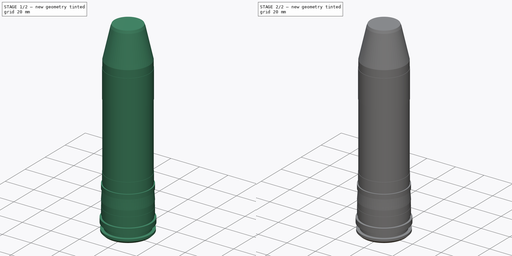
[diagram: build sequence overview — one tinted view per stage of 2, left to right]
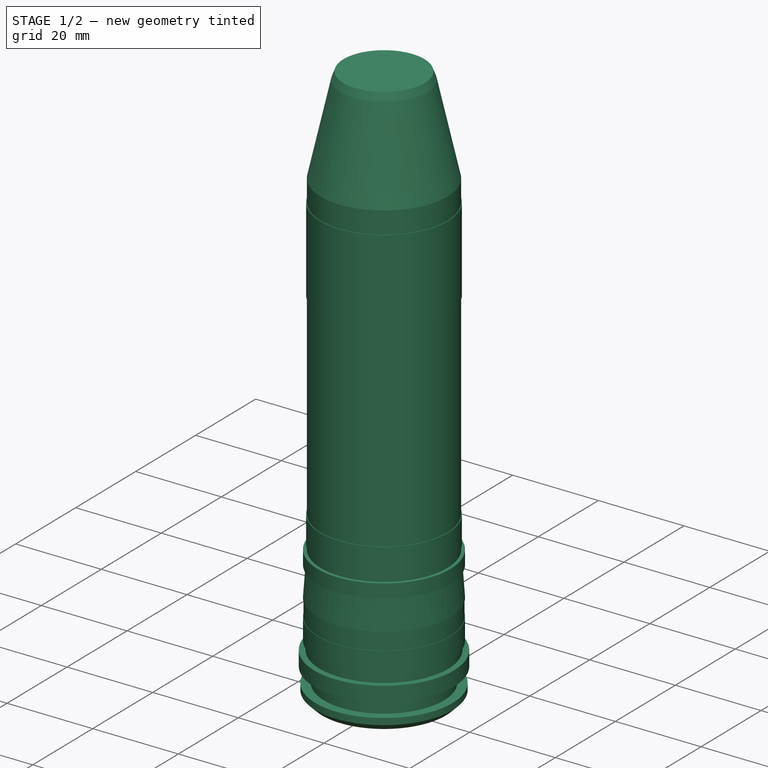
[diagram: stage 1 of 2 — iso view after this stage's code; geometry added in this stage tinted green]
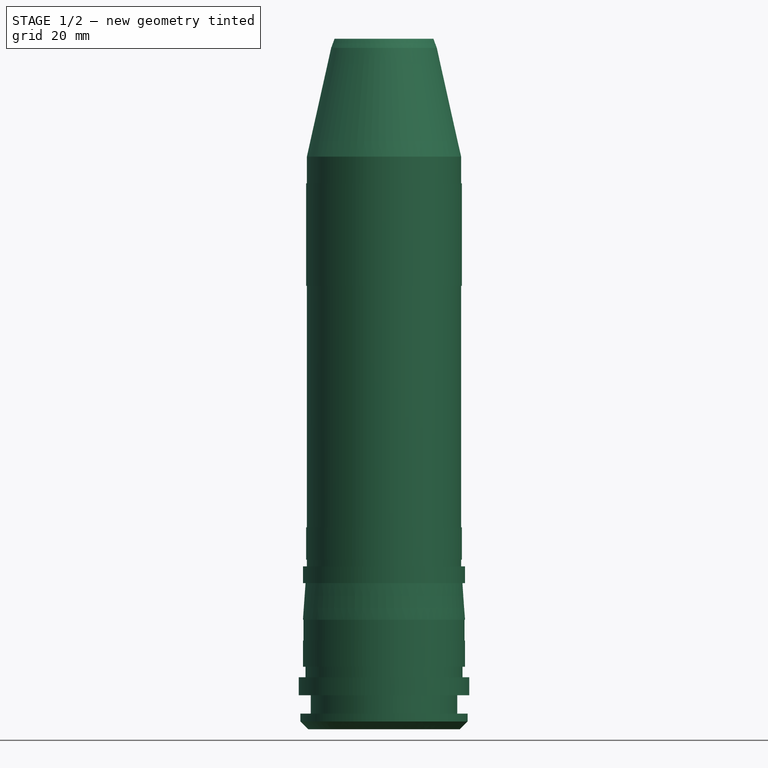
[diagram: stage 1 of 2 — front view after this stage's code; geometry added in this stage tinted green]
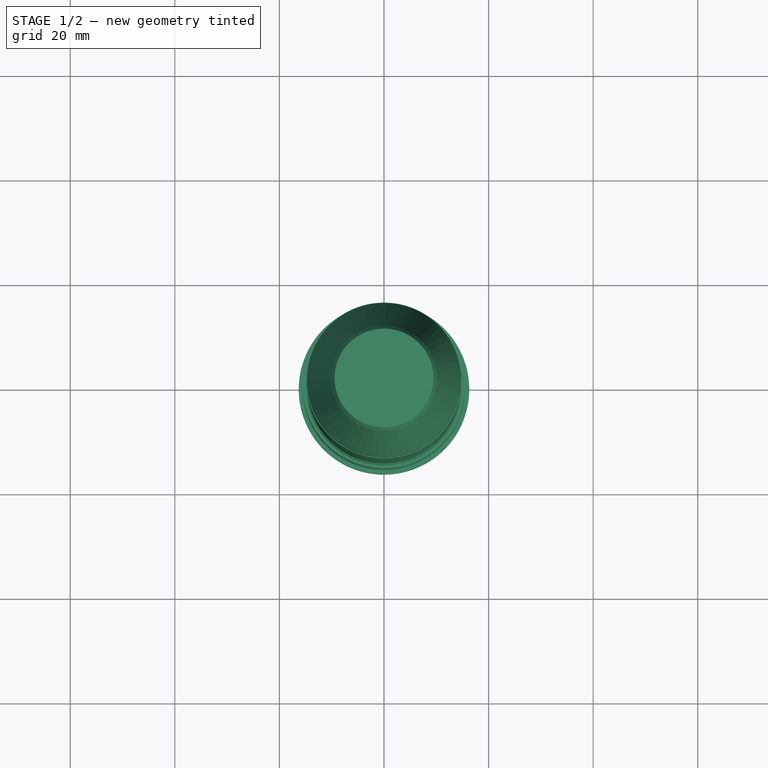
[diagram: stage 1 of 2 — top view after this stage's code; geometry added in this stage tinted green]
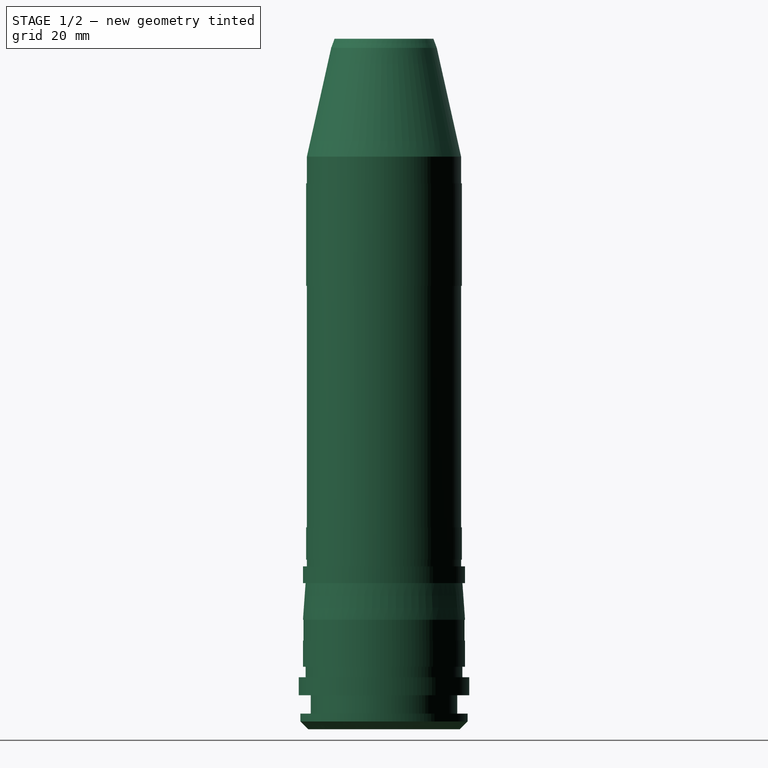
[diagram: stage 1 of 2 — right view after this stage's code; geometry added in this stage tinted green]
FCSTD DOCUMENT  (FreeCAD 0.21R33771 (Git))
Label: VOG17
License: All rights reserved
LicenseURL: http://en.wikipedia.org/wiki/All_rights_reserved
objects: Sketcher::SketchObject×2, PartDesign::Revolution×1, PartDesign::Pocket×1, PartDesign::Body×1
note: 7 computed .brp shape members not serialized (recipe doc carries the construction recipe); baked Part::Feature solids carry a one-line shape summary decoded from their .brp

FEATURE [Sketcher::SketchObject] Sketch
  FullyConstrained = false
  MapMode = 5
  Placement = pos=(0,0,0) rot=(1,0,0;1.5708rad)
  Support = -> [XZ_Plane]
  sketch-geometry (33):
    g0: LineSegment StartX=0 StartY=100.04 StartZ=0 EndX=-9.45 EndY=100.04 EndZ=0
    g1: LineSegment StartX=-9.45 StartY=100.04 StartZ=0 EndX=-10.1 EndY=98.2903 EndZ=0
    g2: LineSegment StartX=-10.1 StartY=98.2903 StartZ=0 EndX=-14.75 EndY=77.4903 EndZ=0
    g3: LineSegment StartX=-14.75 StartY=77.4903 StartZ=0 EndX=-14.75 EndY=72.3903 EndZ=0
    g4: LineSegment StartX=-14.75 StartY=77.4903 StartZ=0 EndX=0 EndY=77.4903 EndZ=0
    g5: LineSegment StartX=-14.75 StartY=72.3903 StartZ=0 EndX=-14.9 EndY=72.3903 EndZ=0
    g6: LineSegment StartX=-14.9 StartY=52.7903 StartZ=0 EndX=-14.9 EndY=72.3903 EndZ=0
    g7: LineSegment StartX=-14.9 StartY=52.7903 StartZ=0 EndX=-14.75 EndY=52.7903 EndZ=0
    g8: LineSegment StartX=-14.75 StartY=52.7903 StartZ=0 EndX=-14.75 EndY=6.5903 EndZ=0
    g9: LineSegment StartX=-14.75 StartY=6.5903 StartZ=0 EndX=-14.9 EndY=6.5903 EndZ=0
    g10: LineSegment StartX=-14.9 StartY=6.5903 StartZ=0 EndX=-14.9 EndY=0.440299 EndZ=0
    g11: LineSegment StartX=-14.9 StartY=0.440299 StartZ=0 EndX=-14.75 EndY=0.440299 EndZ=0
    g12: LineSegment StartX=-14.75 StartY=0.440299 StartZ=0 EndX=-14.75 EndY=-0.859701 EndZ=0
    g13: LineSegment StartX=-14.75 StartY=-0.859701 StartZ=0 EndX=-15.5 EndY=-0.859701 EndZ=0
    g14: LineSegment StartX=-15.5 StartY=-0.859701 StartZ=0 EndX=-15.5 EndY=-4.0597 EndZ=0
    g15: LineSegment StartX=-15.5 StartY=-4.0597 StartZ=0 EndX=-15 EndY=-4.0597 EndZ=0
    g16: LineSegment StartX=-15 StartY=-4.0597 StartZ=0 EndX=-15.5 EndY=-11.0597 EndZ=0
    g17: LineSegment StartX=-15.5 StartY=-4.0597 StartZ=0 EndX=-15.5 EndY=-11.0597 EndZ=0
    g18: LineSegment StartX=-15.5 StartY=-11.0597 StartZ=0 EndX=-15.4 EndY=-11.0597 EndZ=0
    g19: LineSegment StartX=-15.4 StartY=-11.0597 StartZ=0 EndX=-15.4 EndY=-15.0597 EndZ=0
    g20: LineSegment StartX=-15.4 StartY=-15.0597 StartZ=0 EndX=-15.5 EndY=-15.0597 EndZ=0
    g21: LineSegment StartX=-15.5 StartY=-15.0597 StartZ=0 EndX=-15.5 EndY=-20.0597 EndZ=0
    g22: LineSegment StartX=-15.5 StartY=-20.0597 StartZ=0 EndX=-15 EndY=-20.0597 EndZ=0
    g23: LineSegment StartX=-15 StartY=-20.0597 StartZ=0 EndX=-15 EndY=-22.0597 EndZ=0
    g24: LineSegment StartX=-15 StartY=-22.0597 StartZ=0 EndX=-16.3 EndY=-22.0597 EndZ=0
    g25: LineSegment StartX=-16.3 StartY=-22.0597 StartZ=0 EndX=-16.3 EndY=-25.5097 EndZ=0
    g26: LineSegment StartX=-16.3 StartY=-25.5097 StartZ=0 EndX=-14 EndY=-25.5097 EndZ=0
    g27: LineSegment StartX=-14 StartY=-25.5097 StartZ=0 EndX=-14 EndY=-29.0097 EndZ=0
    g28: LineSegment StartX=-14 StartY=-29.0097 StartZ=0 EndX=-16 EndY=-29.0097 EndZ=0
    g29: LineSegment StartX=-16 StartY=-29.0097 StartZ=0 EndX=-16 EndY=-30.5097 EndZ=0
    g30: LineSegment StartX=-16 StartY=-30.5097 StartZ=0 EndX=-14.5 EndY=-32.0097 EndZ=0
    g31: LineSegment StartX=-14.5 StartY=-32.0097 StartZ=0 EndX=0 EndY=-32.0097 EndZ=0
    g32: LineSegment StartX=0 StartY=-32.0097 StartZ=0 EndX=0 EndY=100.04 EndZ=0
  constraints (97):
    c: PointOnObject(g0,g-2)
    c: Horizontal(g0)
    c: DistanceX(g0,g0) = 9.45
    c: Coincident(g1,g0)
    c: DistanceX(g1,g1) = 0.65
    c: DistanceY(g1,g1) = 1.75
    c: Coincident(g2,g1)
    c: DistanceY(g2,g1) = 20.8
    c: Coincident(g3,g2)
    c: Vertical(g3)
    c: DistanceY(g3,g3) = 5.1
    c: Coincident(g4,g2)
    c: Horizontal(g4)
    c: DistanceX(g4,g4) = 14.75
    c: PointOnObject(g4,g-2)
    c: Coincident(g5,g3)
    c: Coincident(g6,g5)
    c: DistanceX(g5,g5) = 0.15
    c: Horizontal(g5)
    c: DistanceY(g6,g6) = 19.6
    c: Vertical(g6)
    c: Coincident(g7,g6)
    c: Horizontal(g7)
    c: DistanceX(g7,g7) = 0.15
    c: Coincident(g8,g7)
    c: Vertical(g8)
    c: DistanceY(g8,g8) = 46.2
    c: Coincident(g9,g8)
    c: Horizontal(g9)
    c: Coincident(g10,g9)
    c: Vertical(g10)
    c: DistanceY(g10,g10) = 6.15
    c: Coincident(g11,g10)
    c: Horizontal(g11)
    c: Coincident(g12,g11)
    c: Vertical(g12)
    c: DistanceX(g9,g8) = 0.15
    c: DistanceX(g11,g11) = 0.15
    c: DistanceY(g12,g12) = 1.3
    c: Coincident(g13,g12)
    c: Horizontal(g13)
    c: DistanceX(g13,g13) = 0.75
    c: Coincident(g14,g13)
    c: Vertical(g14)
    c: DistanceY(g14,g14) = 3.2
    c: Coincident(g15,g14)
    c: Horizontal(g15)
    c: DistanceX(g15,g15) = 0.5
    c: Coincident(g16,g15)
    c: DistanceY(g16,g14) = 7
    c: Coincident(g17,g14)
    c: Coincident(g17,g16)
    c: Vertical(g17)
    c: Coincident(g18,g16)
    c: DistanceX(g18,g18) = 0.1
    c: Horizontal(g18)
    c: Coincident(g19,g18)
    c: Vertical(g19)
    c: DistanceY(g19,g19) = 4
    c: Coincident(g20,g19)
    c: DistanceX(g20,g20) = 0.1
    c: Horizontal(g20)
    c: Coincident(g21,g20)
    c: Vertical(g21)
    c: DistanceY(g21,g21) = 5
    c: Coincident(g22,g21)
    c: Horizontal(g22)
    c: DistanceX(g22,g22) = 0.5
    c: Coincident(g23,g22)
    c: Vertical(g23)
    c: DistanceY(g23,g23) = 2
    c: Coincident(g24,g23)
    c: Horizontal(g24)
    c: DistanceX(g24,g24) = 1.3
    c: Coincident(g25,g24)
    c: Vertical(g25)
    c: DistanceY(g25,g25) = 3.45
    c: Coincident(g26,g25)
    c: Horizontal(g26)
    c: DistanceX(g26,g26) = 2.3
    c: Coincident(g27,g26)
    c: Vertical(g27)
    c: DistanceY(g27,g27) = 3.5
    c: Coincident(g28,g27)
    c: Horizontal(g28)
    c: DistanceX(g28,g28) = 2
    c: Coincident(g29,g28)
    c: Vertical(g29)
    c: DistanceY(g29,g29) = 1.5
    c: Coincident(g30,g29)
    c: Coincident(g31,g30)
    c: PointOnObject(g31,g-2)
    c: Horizontal(g31)
    c: DistanceX(g31,g31) = 14.5
    c: DistanceY(g30,g28) = 3
    c: Coincident(g32,g31)
    c: Coincident(g32,g0)
FEATURE [PartDesign::Revolution] Revolution
  Angle = 360
  Axis = (0,2e-16,1)
  Base = (0,0,0)
  Placement = pos=(0,0,0) rot=(1,0,0;1.5708rad)
  Profile = -> Sketch
  ReferenceAxis = -> Sketch [V_Axis]
  Refine = true
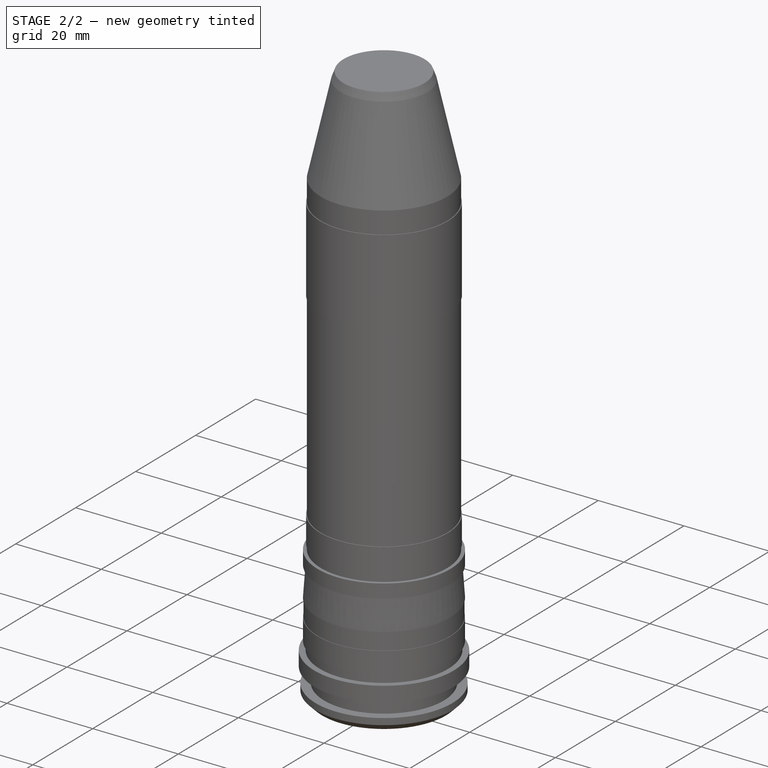
[diagram: stage 2 of 2 — iso view after this stage's code; geometry added in this stage tinted green]
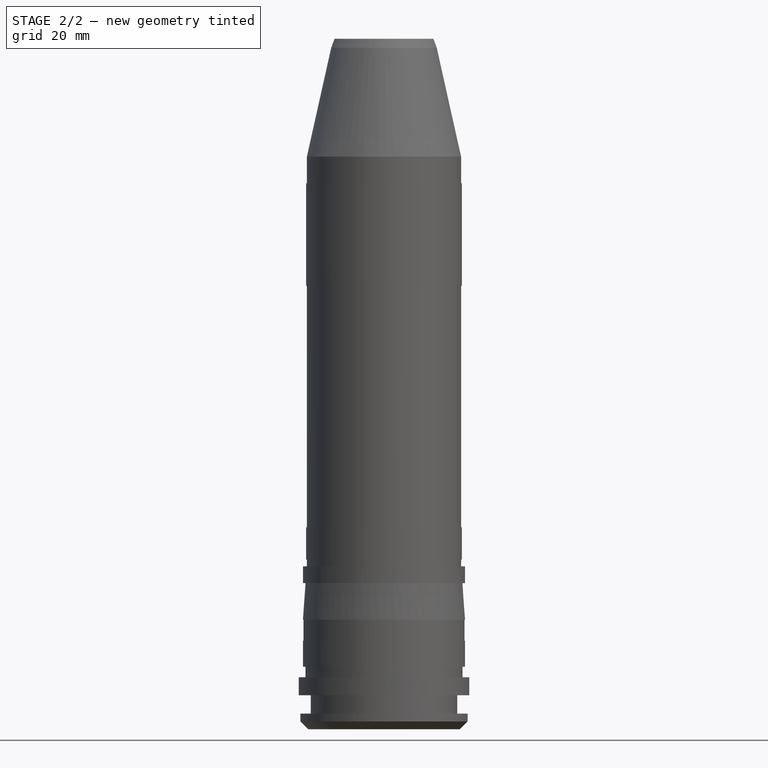
[diagram: stage 2 of 2 — front view after this stage's code; geometry added in this stage tinted green]
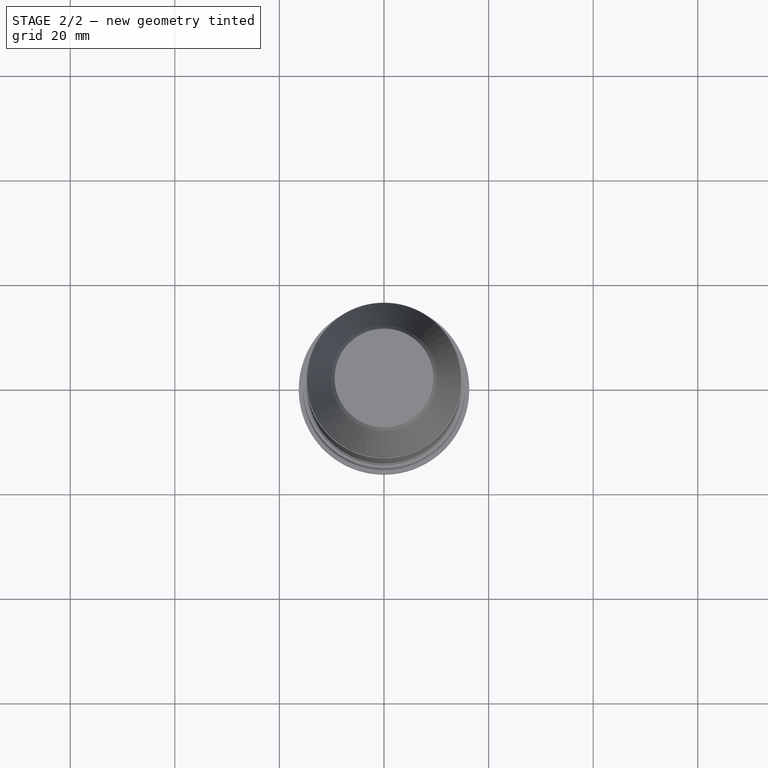
[diagram: stage 2 of 2 — top view after this stage's code; geometry added in this stage tinted green]
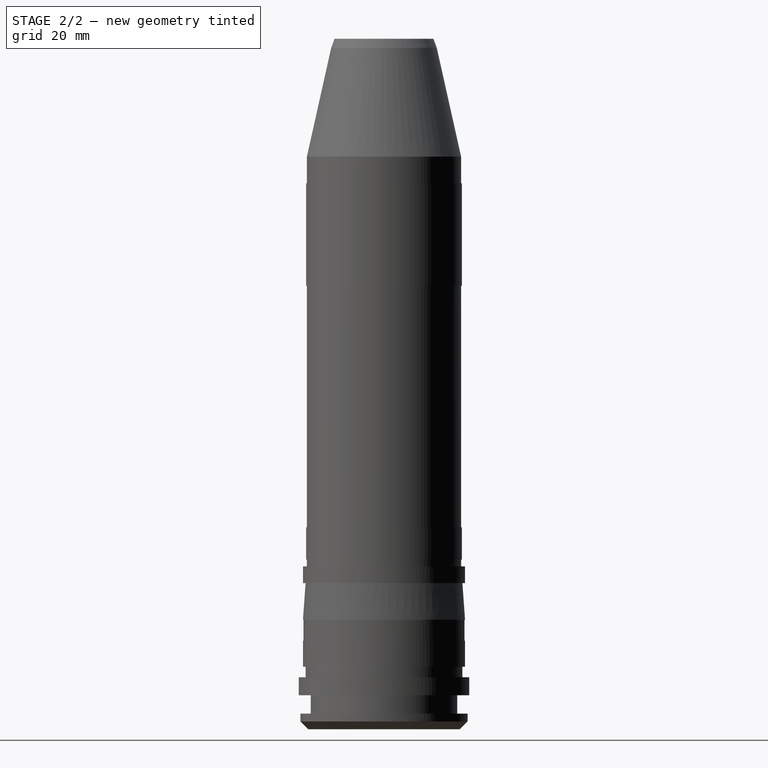
[diagram: stage 2 of 2 — right view after this stage's code; geometry added in this stage tinted green]
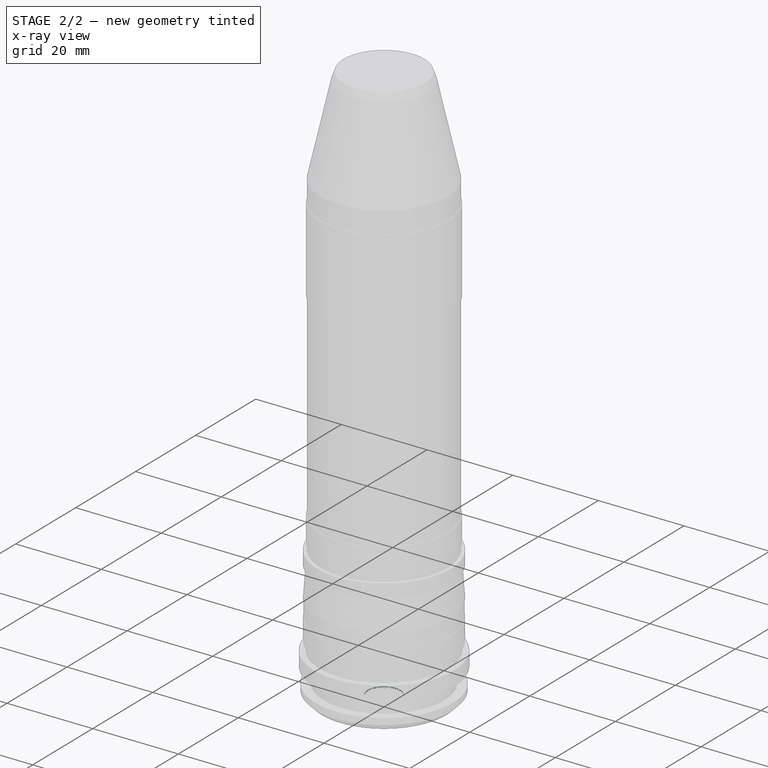
[diagram: stage 2 of 2 — x-ray composite at the iso view; earlier geometry ghosted, this stage's added geometry solid]
FEATURE [Sketcher::SketchObject] Sketch001
  FullyConstrained = true
  MapMode = 5
  Placement = pos=(0,-7.1e-15,-32.0097) rot=(1,0,0;3.14159rad)
  Support = -> [Revolution]
  sketch-geometry (1):
    g0: Circle CenterX=0 CenterY=0 CenterZ=0 NormalX=0 NormalY=0 NormalZ=1 AngleXU=0 Radius=3.775
  constraints (2):
    c: Coincident(g0,g-1)
    c: Radius(g0) = 3.775
FEATURE [PartDesign::Pocket] Pocket
  BaseFeature = -> Revolution
  Direction = (0,2e-16,1)
  Length = 0.5
  Length2 = 5
  Placement = pos=(0,0,0) rot=(1,0,0;1.5708rad)
  Profile = -> Sketch001
  ReferenceAxis = -> Sketch001 [N_Axis]
  Refine = true
  Type = 0
FEATURE [PartDesign::Body] Body
  Group = -> [Sketch,Revolution,Sketch001,Pocket]
  Origin = -> Origin
  Tip = -> Pocket
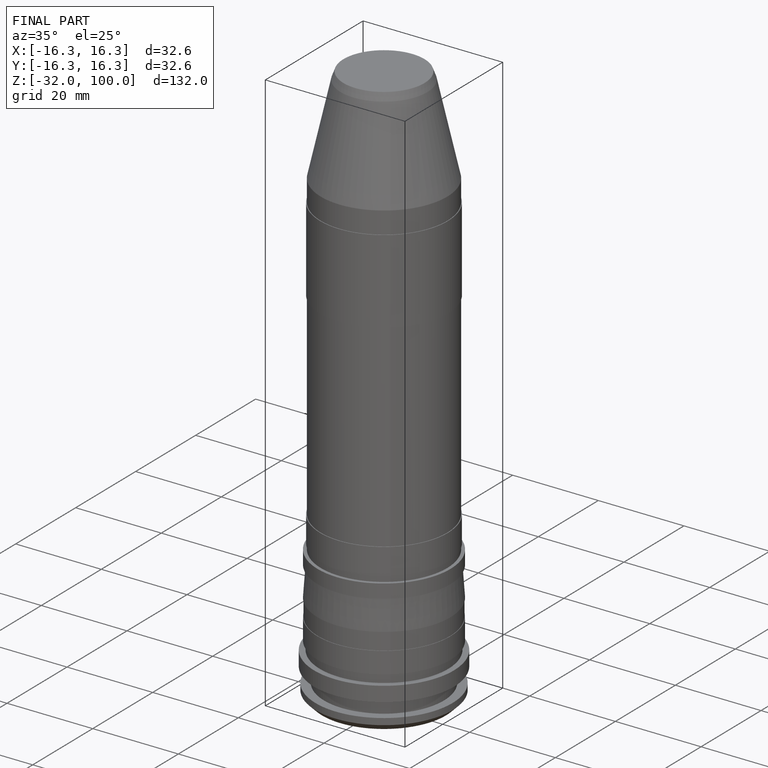
[diagram: finished part — iso view with bounding-box wireframe]
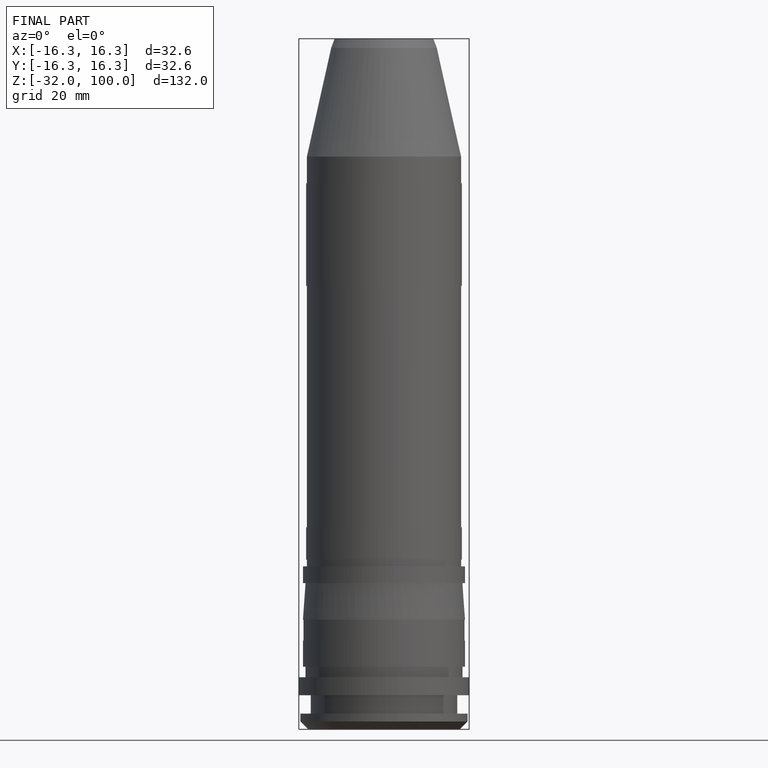
[diagram: finished part — front view with bounding-box wireframe]
